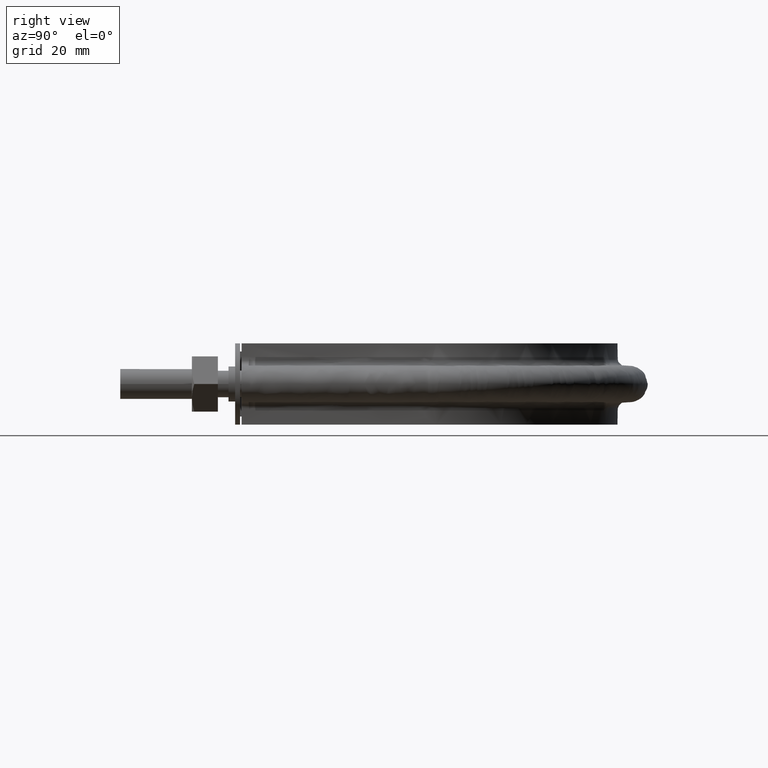
[diagram: clean part render]
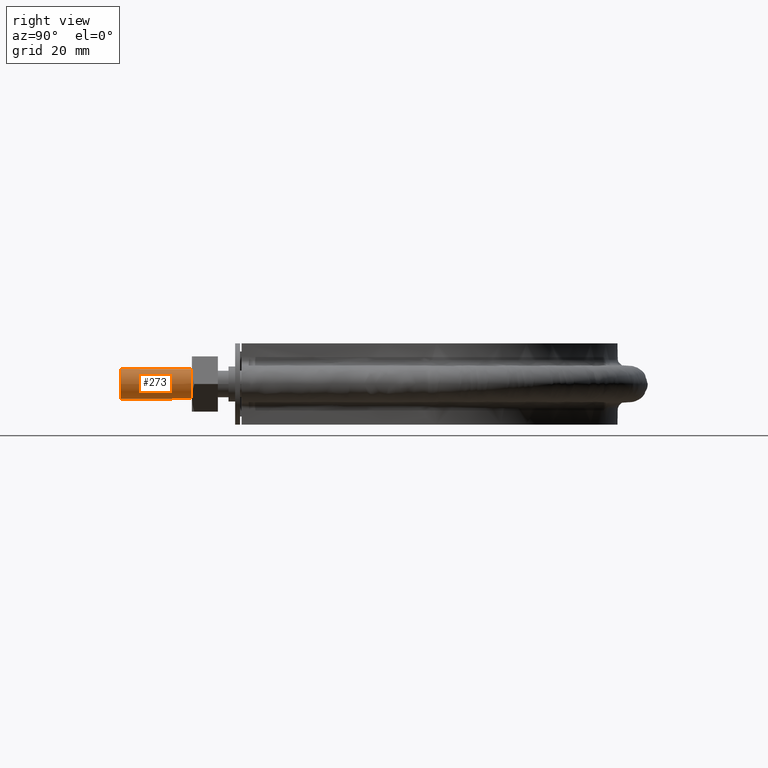
[diagram: same view with one face highlighted and labeled with its STEP entity id]
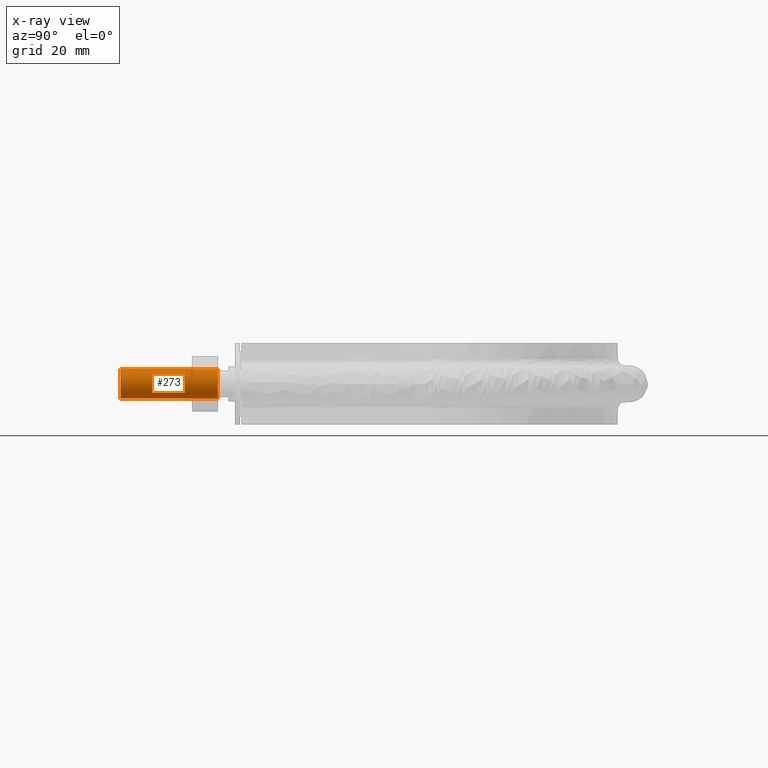
[diagram: x-ray of the same camera — body ghosted, the highlighted face saturated]
A machine part, right view. The second image highlights one B-rep face of the part: STEP entity #273.
The next image is the same camera in x-ray: the body ghosted, the highlighted face saturated — about 0% of this face is hidden behind the body in this view.
In plain terms, the highlighted cylindrical surface (bore or boss wall) has radius 4.6 mm, axis along (-0, -1, -0).
Its self-contained STEP definition (entity closure, byte-faithful):
#273 = ADVANCED_FACE( '', ( #390, #391 ), #392, .T. );
#390 = FACE_OUTER_BOUND( '', #1134, .T. );
#391 = FACE_OUTER_BOUND( '', #1135, .T. );
#392 = CYLINDRICAL_SURFACE( '', #1136, 4.59999999999999 );
#1134 = EDGE_LOOP( '', ( #1582 ) );
#1135 = EDGE_LOOP( '', ( #1583 ) );
#1136 = AXIS2_PLACEMENT_3D( '', #1584, #1585, #1586 );
#1582 = ORIENTED_EDGE( '', *, *, #2343, .T. );
#1583 = ORIENTED_EDGE( '', *, *, #2344, .T. );
#1584 = CARTESIAN_POINT( '', ( 63.0000000000000, 30.0000000000000, 1.92814270409333E-015 ) );
#1585 = DIRECTION( '', ( -2.44921270764476E-016, -1.00000000000000, -6.12303176911189E-017 ) );
#1586 = DIRECTION( '', ( 1.00000000000000, -2.44921270764476E-016, 2.44921270764476E-016 ) );
#2343 = EDGE_CURVE( '', #2583, #2583, #2584, .T. );
#2344 = EDGE_CURVE( '', #2585, #2585, #2586, .T. );
#2583 = VERTEX_POINT( '', #3165 );
#2584 = CIRCLE( '', #3166, 4.59999999999999 );
#2585 = VERTEX_POINT( '', #3167 );
#2586 = CIRCLE( '', #3168, 4.59999999999999 );
#3165 = CARTESIAN_POINT( '', ( 63.0000000000000, -7.71502002908098E-015, 4.59999999999999 ) );
#3166 = AXIS2_PLACEMENT_3D( '', #3803, #3804, #3805 );
#3167 = CARTESIAN_POINT( '', ( 67.6000000000000, 30.0000000000000, 3.05478054960992E-015 ) );
#3168 = AXIS2_PLACEMENT_3D( '', #3806, #3807, #3808 );
#3803 = CARTESIAN_POINT( '', ( 63.0000000000000, -7.71502002908098E-015, 9.12331733597655E-017 ) );
#3804 = DIRECTION( '', ( 1.22460635382238E-016, 1.00000000000000, 0.000000000000000 ) );
#3805 = DIRECTION( '', ( 0.000000000000000, 0.000000000000000, 1.00000000000000 ) );
#3806 = CARTESIAN_POINT( '', ( 63.0000000000000, 30.0000000000000, 1.92814270409333E-015 ) );
#3807 = DIRECTION( '', ( -2.44921270764476E-016, -1.00000000000000, -6.12303176911189E-017 ) );
#3808 = DIRECTION( '', ( 1.00000000000000, -2.44921270764476E-016, 2.44921270764476E-016 ) );